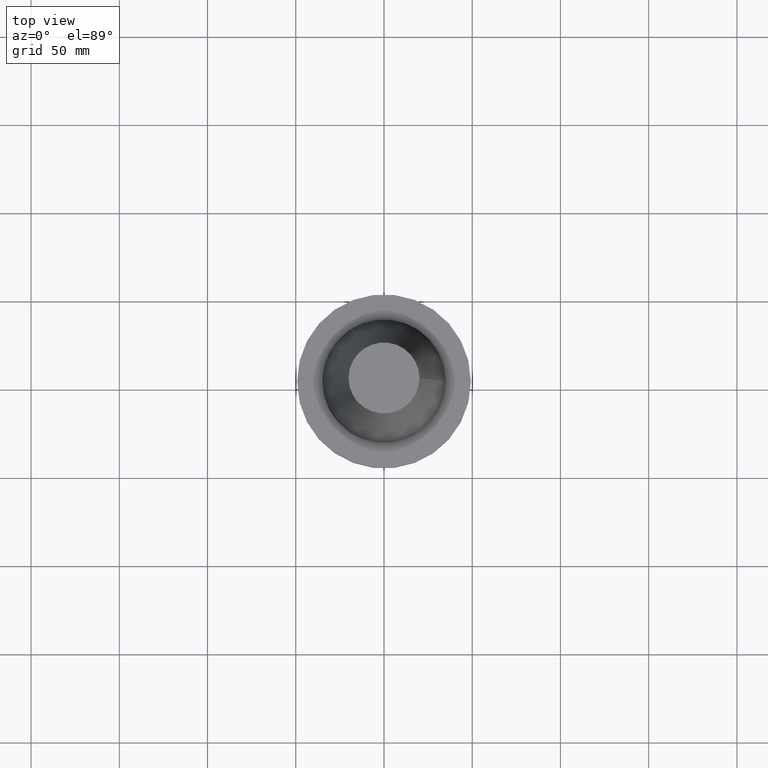
[diagram: clean part render]
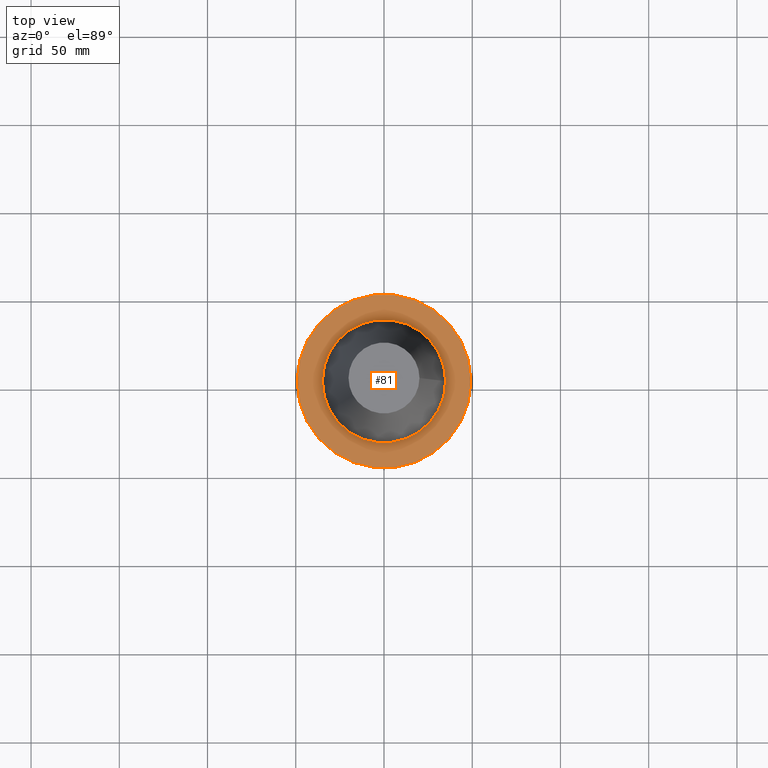
[diagram: same view with one face highlighted and labeled with its STEP entity id]
A machine part, top view. The second image highlights one B-rep face of the part: STEP entity #81.
In plain terms, the highlighted planar face has unit normal (0, 0, -1).
Its self-contained STEP definition (entity closure, byte-faithful):
#6 = AXIS2_PLACEMENT_3D ( 'NONE', #90, #182, #334 ) ;
#14 = VERTEX_POINT ( 'NONE', #19 ) ;
#19 = CARTESIAN_POINT ( 'NONE',  ( 49.21499999999999631, 0.000000000000000000, -1.499999999999987566 ) ) ;
#26 = CARTESIAN_POINT ( 'NONE',  ( 0.000000000000000000, 49.21499999999999631, -1.499999999999992895 ) ) ;
#28 = DIRECTION ( 'NONE',  ( -1.000000000000000000, 0.000000000000000000, -0.000000000000000000 ) ) ;
#47 = CIRCLE ( 'NONE', #116, 34.92499999999999005 ) ;
#50 = CIRCLE ( 'NONE', #6, 49.21499999999999631 ) ;
#63 = ORIENTED_EDGE ( 'NONE', *, *, #277, .T. ) ;
#69 = ORIENTED_EDGE ( 'NONE', *, *, #365, .F. ) ;
#81 = ADVANCED_FACE ( 'NONE', ( #350, #112 ), #266, .F. ) ;
#90 = CARTESIAN_POINT ( 'NONE',  ( 0.000000000000000000, 0.000000000000000000, -1.499999999999987566 ) ) ;
#112 = FACE_OUTER_BOUND ( 'NONE', #280, .T. ) ;
#116 = AXIS2_PLACEMENT_3D ( 'NONE', #214, #188, #332 ) ;
#137 = CARTESIAN_POINT ( 'NONE',  ( 34.92499999999999005, 0.000000000000000000, -1.499999999999987566 ) ) ;
#180 = AXIS2_PLACEMENT_3D ( 'NONE', #26, #353, #28 ) ;
#182 = DIRECTION ( 'NONE',  ( -0.000000000000000000, -0.000000000000000000, 1.000000000000000000 ) ) ;
#188 = DIRECTION ( 'NONE',  ( -0.000000000000000000, -0.000000000000000000, 1.000000000000000000 ) ) ;
#214 = CARTESIAN_POINT ( 'NONE',  ( 0.000000000000000000, 0.000000000000000000, -1.499999999999987566 ) ) ;
#249 = EDGE_LOOP ( 'NONE', ( #69 ) ) ;
#254 = VERTEX_POINT ( 'NONE', #137 ) ;
#266 = PLANE ( 'NONE',  #180 ) ;
#277 = EDGE_CURVE ( 'NONE', #14, #14, #50, .T. ) ;
#280 = EDGE_LOOP ( 'NONE', ( #63 ) ) ;
#332 = DIRECTION ( 'NONE',  ( 1.000000000000000000, 0.000000000000000000, 0.000000000000000000 ) ) ;
#334 = DIRECTION ( 'NONE',  ( 1.000000000000000000, 0.000000000000000000, 0.000000000000000000 ) ) ;
#350 = FACE_BOUND ( 'NONE', #249, .T. ) ;
#353 = DIRECTION ( 'NONE',  ( 0.000000000000000000, 0.000000000000000000, -1.000000000000000000 ) ) ;
#365 = EDGE_CURVE ( 'NONE', #254, #254, #47, .T. ) ;